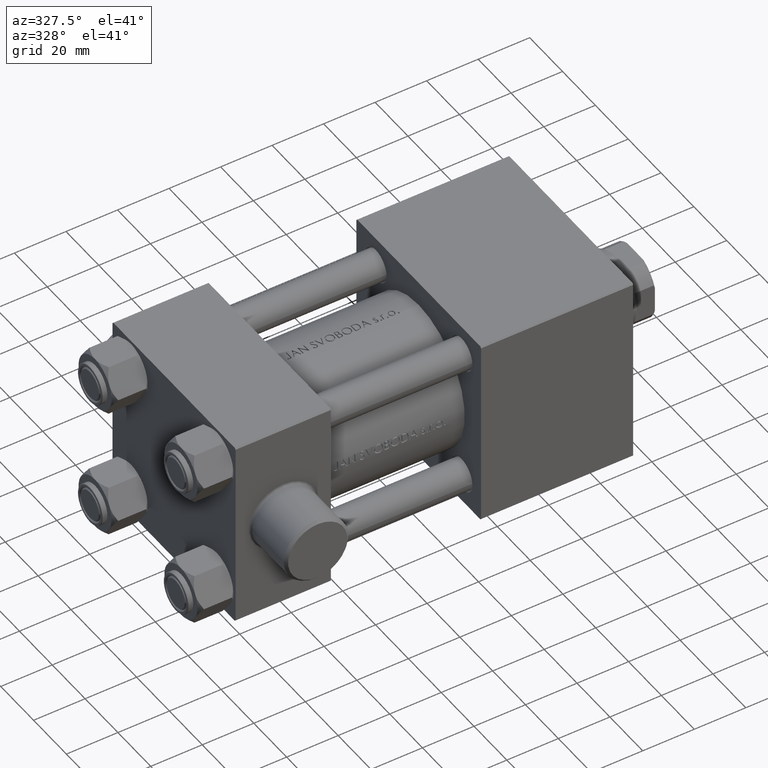
[diagram: clean part render]
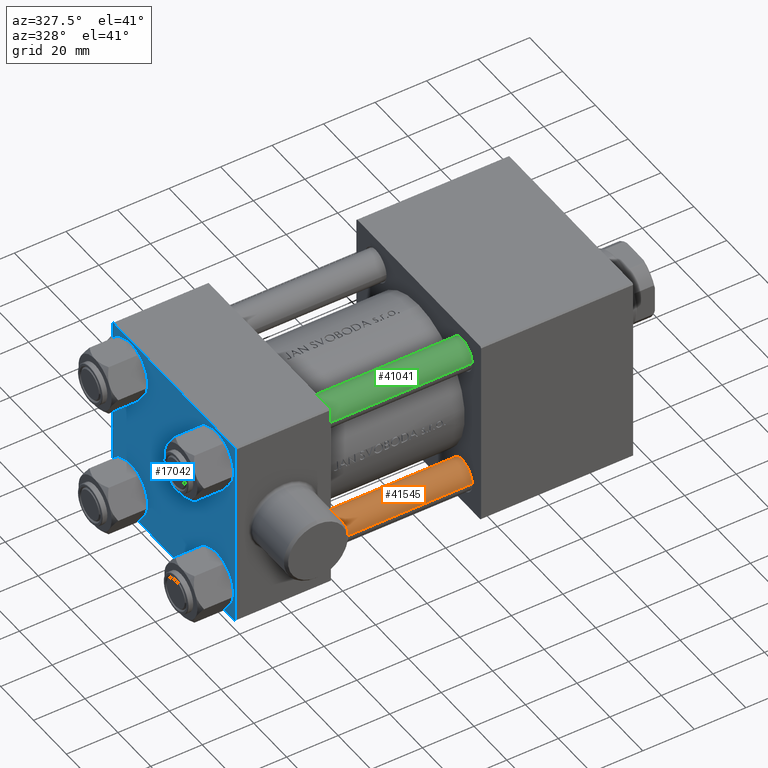
[diagram: same view with three faces highlighted in distinct colors, each labeled with its STEP entity id]
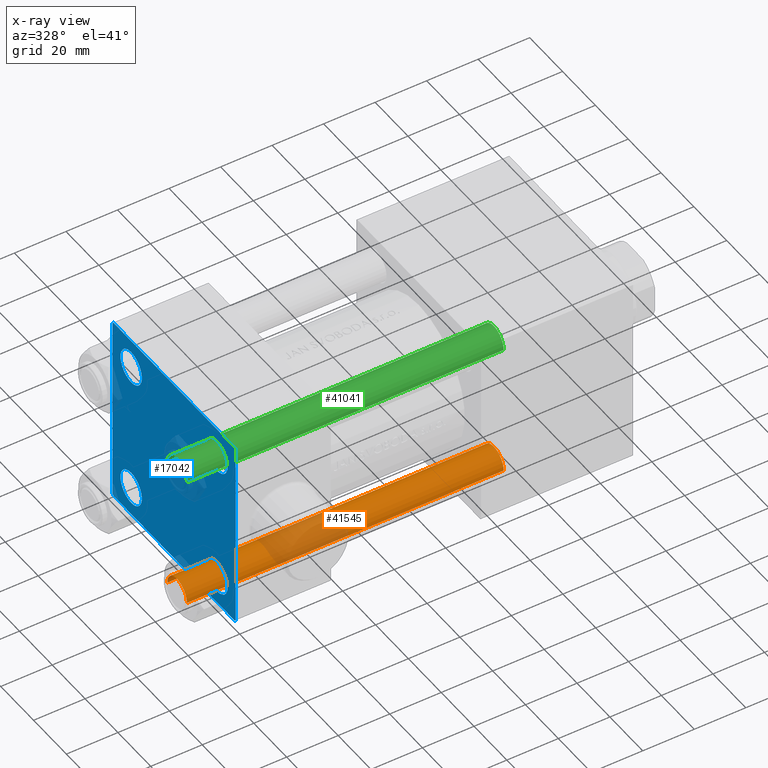
[diagram: x-ray of the same camera — body ghosted, the three highlighted faces saturated]
A machine part, auxiliary view with three faces highlighted in distinct colors.
The next image is the same camera in x-ray (body ghosted, the three faces saturated) — at least one of them is partly hidden behind the body in this view.
Their STEP definitions:

[orange] entity #41545 — the highlighted cylindrical surface (edge-blend (fillet) strip) has radius 6 mm, axis along (-1, 0, 0).
#1244 = LINE ( 'NONE', #15317, #43694 ) ;
#1715 = CARTESIAN_POINT ( 'NONE',  ( -6.000000000000000888, 0.000000000000000000, 0.4999999999999865663 ) ) ;
#1813 = CARTESIAN_POINT ( 'NONE',  ( 6.000000000000000888, 7.347880794884120722E-16, 123.5000000000000426 ) ) ;
#2340 = ORIENTED_EDGE ( 'NONE', *, *, #29836, .T. ) ;
#2950 = VERTEX_POINT ( 'NONE', #31264 ) ;
#4867 = DIRECTION ( 'NONE',  ( -1.000000000000000000, 0.000000000000000000, 0.000000000000000000 ) ) ;
#7322 = CIRCLE ( 'NONE', #33449, 6.000000000000000888 ) ;
#8536 = EDGE_CURVE ( 'NONE', #43744, #41486, #1244, .T. ) ;
#9814 = DIRECTION ( 'NONE',  ( -0.000000000000000000, -0.000000000000000000, 1.000000000000000000 ) ) ;
#11447 = CYLINDRICAL_SURFACE ( 'NONE', #32342, 6.000000000000000888 ) ;
#12482 = EDGE_CURVE ( 'NONE', #2950, #45942, #35245, .T. ) ;
#13410 = CARTESIAN_POINT ( 'NONE',  ( 0.000000000000000000, 0.000000000000000000, 123.5000000000000426 ) ) ;
#14943 = AXIS2_PLACEMENT_3D ( 'NONE', #13410, #45690, #23919 ) ;
#15317 = CARTESIAN_POINT ( 'NONE',  ( 6.000000000000000888, 7.347880794884120722E-16, 124.0000000000000000 ) ) ;
#16233 = DIRECTION ( 'NONE',  ( -0.000000000000000000, -0.000000000000000000, -1.000000000000000000 ) ) ;
#17496 = CARTESIAN_POINT ( 'NONE',  ( -6.000000000000000888, 0.000000000000000000, 124.0000000000000000 ) ) ;
#17517 = EDGE_CURVE ( 'NONE', #41486, #45942, #7322, .T. ) ;
#17952 = CIRCLE ( 'NONE', #14943, 6.000000000000000888 ) ;
#18001 = ORIENTED_EDGE ( 'NONE', *, *, #12482, .F. ) ;
#22716 = ORIENTED_EDGE ( 'NONE', *, *, #17517, .T. ) ;
#23548 = DIRECTION ( 'NONE',  ( -0.000000000000000000, -0.000000000000000000, -1.000000000000000000 ) ) ;
#23919 = DIRECTION ( 'NONE',  ( 1.000000000000000000, 0.000000000000000000, 0.000000000000000000 ) ) ;
#24094 = EDGE_LOOP ( 'NONE', ( #2340, #40093, #22716, #18001 ) ) ;
#25241 = DIRECTION ( 'NONE',  ( 1.000000000000000000, 0.000000000000000000, 0.000000000000000000 ) ) ;
#25711 = CARTESIAN_POINT ( 'NONE',  ( 6.000000000000000888, 7.347880794884120722E-16, 0.4999999999999865663 ) ) ;
#29836 = EDGE_CURVE ( 'NONE', #2950, #43744, #17952, .T. ) ;
#29909 = CARTESIAN_POINT ( 'NONE',  ( 0.000000000000000000, 0.000000000000000000, 124.0000000000000000 ) ) ;
#30314 = VECTOR ( 'NONE', #23548, 1000.000000000000000 ) ;
#31264 = CARTESIAN_POINT ( 'NONE',  ( -6.000000000000000888, 0.000000000000000000, 123.5000000000000426 ) ) ;
#32342 = AXIS2_PLACEMENT_3D ( 'NONE', #29909, #36926, #4867 ) ;
#33449 = AXIS2_PLACEMENT_3D ( 'NONE', #34608, #9814, #25241 ) ;
#34608 = CARTESIAN_POINT ( 'NONE',  ( 0.000000000000000000, 0.000000000000000000, 0.4999999999999865663 ) ) ;
#35245 = LINE ( 'NONE', #17496, #30314 ) ;
#36926 = DIRECTION ( 'NONE',  ( -0.000000000000000000, -0.000000000000000000, -1.000000000000000000 ) ) ;
#40093 = ORIENTED_EDGE ( 'NONE', *, *, #8536, .T. ) ;
#41486 = VERTEX_POINT ( 'NONE', #25711 ) ;
#41545 = ADVANCED_FACE ( 'NONE', ( #43730 ), #11447, .T. ) ;
#43694 = VECTOR ( 'NONE', #16233, 1000.000000000000000 ) ;
#43730 = FACE_OUTER_BOUND ( 'NONE', #24094, .T. ) ;
#43744 = VERTEX_POINT ( 'NONE', #1813 ) ;
#45690 = DIRECTION ( 'NONE',  ( 0.000000000000000000, 0.000000000000000000, -1.000000000000000000 ) ) ;
#45942 = VERTEX_POINT ( 'NONE', #1715 ) ;

[blue] entity #17042 — the highlighted planar face has unit normal (-1, 0, 0).
#28 = EDGE_CURVE ( 'NONE', #23589, #42600, #4659, .T. ) ;
#189 = VECTOR ( 'NONE', #23247, 1000.000000000000114 ) ;
#336 = CARTESIAN_POINT ( 'NONE',  ( 0.000000000000000000, -26.14999999999999147, 32.65000000000003411 ) ) ;
#613 = CARTESIAN_POINT ( 'NONE',  ( 0.000000000000000000, -26.14999999999999147, -32.65000000000002700 ) ) ;
#2384 = LINE ( 'NONE', #27901, #27237 ) ;
#2500 = VERTEX_POINT ( 'NONE', #29104 ) ;
#2774 = CIRCLE ( 'NONE', #21503, 6.500000000000015987 ) ;
#2827 = DIRECTION ( 'NONE',  ( 0.000000000000000000, 0.000000000000000000, 1.000000000000000000 ) ) ;
#3500 = DIRECTION ( 'NONE',  ( 1.000000000000000000, -0.000000000000000000, 0.000000000000000000 ) ) ;
#3616 = VECTOR ( 'NONE', #9877, 1000.000000000000000 ) ;
#3921 = VECTOR ( 'NONE', #16897, 1000.000000000000000 ) ;
#4283 = DIRECTION ( 'NONE',  ( -1.000000000000000000, 0.000000000000000000, -0.000000000000000000 ) ) ;
#4637 = EDGE_CURVE ( 'NONE', #9307, #23018, #28742, .T. ) ;
#4659 = LINE ( 'NONE', #44433, #33096 ) ;
#4766 = DIRECTION ( 'NONE',  ( 1.000000000000000000, -0.000000000000000000, 0.000000000000000000 ) ) ;
#5524 = AXIS2_PLACEMENT_3D ( 'NONE', #24343, #31593, #6794 ) ;
#5641 = CARTESIAN_POINT ( 'NONE',  ( 0.000000000000000000, -26.14999999999999147, -26.15000000000000924 ) ) ;
#6619 = VERTEX_POINT ( 'NONE', #17974 ) ;
#6794 = DIRECTION ( 'NONE',  ( 0.000000000000000000, 0.000000000000000000, 1.000000000000000000 ) ) ;
#7732 = LINE ( 'NONE', #25058, #20624 ) ;
#7734 = VERTEX_POINT ( 'NONE', #336 ) ;
#7817 = EDGE_CURVE ( 'NONE', #6619, #36479, #2384, .T. ) ;
#7845 = CARTESIAN_POINT ( 'NONE',  ( 0.000000000000000000, -26.14999999999999147, -19.64999999999999503 ) ) ;
#8247 = DIRECTION ( 'NONE',  ( -0.000000000000000000, 0.000000000000000000, 1.000000000000000000 ) ) ;
#8770 = ORIENTED_EDGE ( 'NONE', *, *, #34324, .T. ) ;
#9307 = VERTEX_POINT ( 'NONE', #35269 ) ;
#9671 = CIRCLE ( 'NONE', #16397, 6.500000000000023093 ) ;
#9877 = DIRECTION ( 'NONE',  ( 0.000000000000000000, 9.251858538542971581E-17, -1.000000000000000000 ) ) ;
#10870 = CARTESIAN_POINT ( 'NONE',  ( 0.000000000000000000, 36.99999999999999289, 37.50000000000000000 ) ) ;
#11753 = DIRECTION ( 'NONE',  ( 0.000000000000000000, 0.000000000000000000, 1.000000000000000000 ) ) ;
#11802 = ORIENTED_EDGE ( 'NONE', *, *, #31872, .T. ) ;
#11977 = EDGE_CURVE ( 'NONE', #23589, #26909, #7732, .T. ) ;
#12603 = VERTEX_POINT ( 'NONE', #29605 ) ;
#13512 = ORIENTED_EDGE ( 'NONE', *, *, #25573, .T. ) ;
#13607 = CARTESIAN_POINT ( 'NONE',  ( 0.000000000000000000, 26.14999999999999858, 26.15000000000000213 ) ) ;
#14206 = CARTESIAN_POINT ( 'NONE',  ( 0.000000000000000000, -37.50000000000000000, -37.00000000000003553 ) ) ;
#14639 = DIRECTION ( 'NONE',  ( 0.000000000000000000, 0.000000000000000000, 1.000000000000000000 ) ) ;
#14802 = DIRECTION ( 'NONE',  ( 0.000000000000000000, 0.000000000000000000, -1.000000000000000000 ) ) ;
#14926 = CIRCLE ( 'NONE', #17908, 6.500000000000023093 ) ;
#15217 = CARTESIAN_POINT ( 'NONE',  ( 0.000000000000000000, 26.14999999999999858, 32.65000000000002700 ) ) ;
#15285 = CARTESIAN_POINT ( 'NONE',  ( 0.000000000000000000, -26.14999999999999147, 26.15000000000000924 ) ) ;
#15641 = CARTESIAN_POINT ( 'NONE',  ( 0.000000000000000000, 26.14999999999999858, -32.65000000000001990 ) ) ;
#16066 = EDGE_CURVE ( 'NONE', #24233, #26224, #2774, .T. ) ;
#16397 = AXIS2_PLACEMENT_3D ( 'NONE', #15285, #43806, #11753 ) ;
#16422 = DIRECTION ( 'NONE',  ( 1.000000000000000000, -0.000000000000000000, 0.000000000000000000 ) ) ;
#16493 = CIRCLE ( 'NONE', #34397, 6.500000000000015987 ) ;
#16655 = CARTESIAN_POINT ( 'NONE',  ( 0.000000000000000000, 37.49999999999999289, -37.50000000000000000 ) ) ;
#16758 = CIRCLE ( 'NONE', #5524, 6.500000000000023093 ) ;
#16872 = ORIENTED_EDGE ( 'NONE', *, *, #28, .F. ) ;
#16897 = DIRECTION ( 'NONE',  ( 0.000000000000000000, -1.000000000000000000, -9.251858538542972814E-17 ) ) ;
#17042 = ADVANCED_FACE ( 'NONE', ( #36793, #22530, #22759, #22078, #37018 ), #36571, .T. ) ;
#17306 = ORIENTED_EDGE ( 'NONE', *, *, #27863, .T. ) ;
#17908 = AXIS2_PLACEMENT_3D ( 'NONE', #13607, #16422, #2827 ) ;
#17966 = EDGE_CURVE ( 'NONE', #2500, #36479, #20887, .T. ) ;
#17974 = CARTESIAN_POINT ( 'NONE',  ( 0.000000000000000000, -37.00000000000002132, -37.50000000000000711 ) ) ;
#18068 = DIRECTION ( 'NONE',  ( 0.000000000000000000, 0.7071067811865474617, -0.7071067811865474617 ) ) ;
#18208 = EDGE_CURVE ( 'NONE', #26909, #45348, #36066, .T. ) ;
#18856 = CARTESIAN_POINT ( 'NONE',  ( 0.000000000000000000, 37.24999999999998579, -37.24999999999998579 ) ) ;
#19042 = EDGE_CURVE ( 'NONE', #23018, #9307, #35038, .T. ) ;
#19518 = CARTESIAN_POINT ( 'NONE',  ( 0.000000000000000000, -26.14999999999999147, -26.15000000000000924 ) ) ;
#19749 = CARTESIAN_POINT ( 'NONE',  ( -0.000000000000000000, -37.25000000000000000, 37.25000000000000000 ) ) ;
#19934 = DIRECTION ( 'NONE',  ( 1.000000000000000000, -0.000000000000000000, 0.000000000000000000 ) ) ;
#20018 = EDGE_CURVE ( 'NONE', #44867, #12603, #14926, .T. ) ;
#20624 = VECTOR ( 'NONE', #18068, 1000.000000000000114 ) ;
#20887 = LINE ( 'NONE', #27891, #3616 ) ;
#21185 = DIRECTION ( 'NONE',  ( 0.000000000000000000, 0.000000000000000000, 1.000000000000000000 ) ) ;
#21503 = AXIS2_PLACEMENT_3D ( 'NONE', #5641, #19934, #41447 ) ;
#21613 = VECTOR ( 'NONE', #35718, 1000.000000000000114 ) ;
#22078 = FACE_BOUND ( 'NONE', #26324, .T. ) ;
#22530 = FACE_BOUND ( 'NONE', #27815, .T. ) ;
#22679 = ORIENTED_EDGE ( 'NONE', *, *, #36737, .T. ) ;
#22759 = FACE_BOUND ( 'NONE', #34041, .T. ) ;
#23018 = VERTEX_POINT ( 'NONE', #15641 ) ;
#23247 = DIRECTION ( 'NONE',  ( -0.000000000000000000, 0.7071067811865474617, 0.7071067811865474617 ) ) ;
#23357 = ORIENTED_EDGE ( 'NONE', *, *, #4637, .T. ) ;
#23363 = DIRECTION ( 'NONE',  ( 0.000000000000000000, -1.000000000000000000, -9.251858538542971581E-17 ) ) ;
#23589 = VERTEX_POINT ( 'NONE', #10870 ) ;
#23972 = ORIENTED_EDGE ( 'NONE', *, *, #16066, .T. ) ;
#24233 = VERTEX_POINT ( 'NONE', #613 ) ;
#24343 = CARTESIAN_POINT ( 'NONE',  ( 0.000000000000000000, -26.14999999999999147, 26.15000000000000924 ) ) ;
#24489 = AXIS2_PLACEMENT_3D ( 'NONE', #36346, #4283, #8247 ) ;
#24982 = ORIENTED_EDGE ( 'NONE', *, *, #18208, .T. ) ;
#25058 = CARTESIAN_POINT ( 'NONE',  ( 0.000000000000000000, 37.24999999999999289, 37.24999999999999289 ) ) ;
#25282 = VECTOR ( 'NONE', #14802, 1000.000000000000000 ) ;
#25573 = EDGE_CURVE ( 'NONE', #7734, #44177, #9671, .T. ) ;
#26224 = VERTEX_POINT ( 'NONE', #7845 ) ;
#26324 = EDGE_LOOP ( 'NONE', ( #29573, #8770 ) ) ;
#26434 = DIRECTION ( 'NONE',  ( 1.000000000000000000, -0.000000000000000000, 0.000000000000000000 ) ) ;
#26611 = ORIENTED_EDGE ( 'NONE', *, *, #7817, .T. ) ;
#26909 = VERTEX_POINT ( 'NONE', #32773 ) ;
#27237 = VECTOR ( 'NONE', #38656, 1000.000000000000000 ) ;
#27815 = EDGE_LOOP ( 'NONE', ( #11802, #23972 ) ) ;
#27863 = EDGE_CURVE ( 'NONE', #45348, #27916, #39910, .T. ) ;
#27891 = CARTESIAN_POINT ( 'NONE',  ( 0.000000000000000000, -37.50000000000000711, 37.49999999999999289 ) ) ;
#27901 = CARTESIAN_POINT ( 'NONE',  ( 0.000000000000000000, -37.24999999999975842, -37.25000000000027001 ) ) ;
#27916 = VERTEX_POINT ( 'NONE', #40368 ) ;
#28742 = CIRCLE ( 'NONE', #43697, 6.500000000000015987 ) ;
#29104 = CARTESIAN_POINT ( 'NONE',  ( 0.000000000000000000, -37.50000000000000711, 36.99999999999999289 ) ) ;
#29246 = ORIENTED_EDGE ( 'NONE', *, *, #17966, .F. ) ;
#29573 = ORIENTED_EDGE ( 'NONE', *, *, #20018, .T. ) ;
#29605 = CARTESIAN_POINT ( 'NONE',  ( 0.000000000000000000, 26.14999999999999858, 19.64999999999998437 ) ) ;
#30028 = LINE ( 'NONE', #19749, #189 ) ;
#30607 = CARTESIAN_POINT ( 'NONE',  ( 0.000000000000000000, 37.49999999999999289, -36.99999999999998579 ) ) ;
#30871 = DIRECTION ( 'NONE',  ( 0.000000000000000000, 0.000000000000000000, 1.000000000000000000 ) ) ;
#30905 = LINE ( 'NONE', #16655, #3921 ) ;
#31211 = ORIENTED_EDGE ( 'NONE', *, *, #44730, .T. ) ;
#31593 = DIRECTION ( 'NONE',  ( 1.000000000000000000, -0.000000000000000000, 0.000000000000000000 ) ) ;
#31700 = CARTESIAN_POINT ( 'NONE',  ( 0.000000000000000000, 26.14999999999999858, -26.15000000000000213 ) ) ;
#31872 = EDGE_CURVE ( 'NONE', #26224, #24233, #16493, .T. ) ;
#32257 = CIRCLE ( 'NONE', #34471, 6.500000000000023093 ) ;
#32773 = CARTESIAN_POINT ( 'NONE',  ( 0.000000000000000000, 37.49999999999999289, 37.00000000000000000 ) ) ;
#33096 = VECTOR ( 'NONE', #23363, 1000.000000000000000 ) ;
#33677 = CARTESIAN_POINT ( 'NONE',  ( 0.000000000000000000, 26.14999999999999858, -26.15000000000000213 ) ) ;
#34041 = EDGE_LOOP ( 'NONE', ( #23357, #34337 ) ) ;
#34324 = EDGE_CURVE ( 'NONE', #12603, #44867, #32257, .T. ) ;
#34337 = ORIENTED_EDGE ( 'NONE', *, *, #19042, .T. ) ;
#34341 = ORIENTED_EDGE ( 'NONE', *, *, #37044, .T. ) ;
#34397 = AXIS2_PLACEMENT_3D ( 'NONE', #19518, #4766, #44767 ) ;
#34471 = AXIS2_PLACEMENT_3D ( 'NONE', #39058, #3500, #14639 ) ;
#35038 = CIRCLE ( 'NONE', #44710, 6.500000000000015987 ) ;
#35269 = CARTESIAN_POINT ( 'NONE',  ( 0.000000000000000000, 26.14999999999999858, -19.64999999999998792 ) ) ;
#35718 = DIRECTION ( 'NONE',  ( -0.000000000000000000, -0.7071067811865474617, -0.7071067811865474617 ) ) ;
#36066 = LINE ( 'NONE', #39795, #25282 ) ;
#36346 = CARTESIAN_POINT ( 'NONE',  ( 0.000000000000000000, 0.000000000000000000, 0.000000000000000000 ) ) ;
#36479 = VERTEX_POINT ( 'NONE', #14206 ) ;
#36571 = PLANE ( 'NONE',  #24489 ) ;
#36737 = EDGE_CURVE ( 'NONE', #2500, #42600, #30028, .T. ) ;
#36793 = FACE_BOUND ( 'NONE', #43909, .T. ) ;
#37018 = FACE_OUTER_BOUND ( 'NONE', #38312, .T. ) ;
#37044 = EDGE_CURVE ( 'NONE', #27916, #6619, #30905, .T. ) ;
#37111 = ORIENTED_EDGE ( 'NONE', *, *, #11977, .T. ) ;
#37961 = CARTESIAN_POINT ( 'NONE',  ( 0.000000000000000000, -26.14999999999999147, 19.64999999999999147 ) ) ;
#38312 = EDGE_LOOP ( 'NONE', ( #24982, #17306, #34341, #26611, #29246, #22679, #16872, #37111 ) ) ;
#38656 = DIRECTION ( 'NONE',  ( 0.000000000000000000, -0.7071067811865524577, 0.7071067811865426878 ) ) ;
#39058 = CARTESIAN_POINT ( 'NONE',  ( 0.000000000000000000, 26.14999999999999858, 26.15000000000000213 ) ) ;
#39795 = CARTESIAN_POINT ( 'NONE',  ( 0.000000000000000000, 37.49999999999999289, 37.50000000000000000 ) ) ;
#39910 = LINE ( 'NONE', #18856, #21613 ) ;
#40368 = CARTESIAN_POINT ( 'NONE',  ( 0.000000000000000000, 36.99999999999997868, -37.50000000000000000 ) ) ;
#41447 = DIRECTION ( 'NONE',  ( 0.000000000000000000, 0.000000000000000000, 1.000000000000000000 ) ) ;
#42068 = CARTESIAN_POINT ( 'NONE',  ( 0.000000000000000000, -37.00000000000000711, 37.49999999999999289 ) ) ;
#42600 = VERTEX_POINT ( 'NONE', #42068 ) ;
#42704 = DIRECTION ( 'NONE',  ( 1.000000000000000000, -0.000000000000000000, 0.000000000000000000 ) ) ;
#43697 = AXIS2_PLACEMENT_3D ( 'NONE', #33677, #26434, #30871 ) ;
#43806 = DIRECTION ( 'NONE',  ( 1.000000000000000000, -0.000000000000000000, 0.000000000000000000 ) ) ;
#43909 = EDGE_LOOP ( 'NONE', ( #13512, #31211 ) ) ;
#44177 = VERTEX_POINT ( 'NONE', #37961 ) ;
#44433 = CARTESIAN_POINT ( 'NONE',  ( 0.000000000000000000, 37.49999999999999289, 37.50000000000000000 ) ) ;
#44710 = AXIS2_PLACEMENT_3D ( 'NONE', #31700, #42704, #21185 ) ;
#44730 = EDGE_CURVE ( 'NONE', #44177, #7734, #16758, .T. ) ;
#44767 = DIRECTION ( 'NONE',  ( 0.000000000000000000, 0.000000000000000000, 1.000000000000000000 ) ) ;
#44867 = VERTEX_POINT ( 'NONE', #15217 ) ;
#45348 = VERTEX_POINT ( 'NONE', #30607 ) ;

[green] entity #41041 — the highlighted cylindrical surface (edge-blend (fillet) strip) has radius 6 mm, axis along (1, -0, -0).
#374 = EDGE_CURVE ( 'NONE', #45942, #41486, #39815, .T. ) ;
#539 = DIRECTION ( 'NONE',  ( 0.000000000000000000, 0.000000000000000000, -1.000000000000000000 ) ) ;
#772 = DIRECTION ( 'NONE',  ( 1.000000000000000000, 0.000000000000000000, 0.000000000000000000 ) ) ;
#1244 = LINE ( 'NONE', #15317, #43694 ) ;
#1715 = CARTESIAN_POINT ( 'NONE',  ( -6.000000000000000888, 0.000000000000000000, 0.4999999999999865663 ) ) ;
#1813 = CARTESIAN_POINT ( 'NONE',  ( 6.000000000000000888, 7.347880794884120722E-16, 123.5000000000000426 ) ) ;
#1821 = EDGE_LOOP ( 'NONE', ( #8670, #23790, #36767, #8501 ) ) ;
#2950 = VERTEX_POINT ( 'NONE', #31264 ) ;
#3220 = AXIS2_PLACEMENT_3D ( 'NONE', #13671, #21153, #42214 ) ;
#4742 = CYLINDRICAL_SURFACE ( 'NONE', #11500, 6.000000000000000888 ) ;
#7331 = CARTESIAN_POINT ( 'NONE',  ( 0.000000000000000000, 0.000000000000000000, 123.5000000000000426 ) ) ;
#8501 = ORIENTED_EDGE ( 'NONE', *, *, #374, .T. ) ;
#8536 = EDGE_CURVE ( 'NONE', #43744, #41486, #1244, .T. ) ;
#8670 = ORIENTED_EDGE ( 'NONE', *, *, #8536, .F. ) ;
#8945 = FACE_OUTER_BOUND ( 'NONE', #1821, .T. ) ;
#11500 = AXIS2_PLACEMENT_3D ( 'NONE', #40092, #15312, #19039 ) ;
#11645 = EDGE_CURVE ( 'NONE', #43744, #2950, #43790, .T. ) ;
#12482 = EDGE_CURVE ( 'NONE', #2950, #45942, #35245, .T. ) ;
#13671 = CARTESIAN_POINT ( 'NONE',  ( 0.000000000000000000, 0.000000000000000000, 0.4999999999999865663 ) ) ;
#15312 = DIRECTION ( 'NONE',  ( -0.000000000000000000, -0.000000000000000000, -1.000000000000000000 ) ) ;
#15317 = CARTESIAN_POINT ( 'NONE',  ( 6.000000000000000888, 7.347880794884120722E-16, 124.0000000000000000 ) ) ;
#16233 = DIRECTION ( 'NONE',  ( -0.000000000000000000, -0.000000000000000000, -1.000000000000000000 ) ) ;
#17496 = CARTESIAN_POINT ( 'NONE',  ( -6.000000000000000888, 0.000000000000000000, 124.0000000000000000 ) ) ;
#19039 = DIRECTION ( 'NONE',  ( -1.000000000000000000, 0.000000000000000000, 0.000000000000000000 ) ) ;
#21153 = DIRECTION ( 'NONE',  ( -0.000000000000000000, -0.000000000000000000, 1.000000000000000000 ) ) ;
#23548 = DIRECTION ( 'NONE',  ( -0.000000000000000000, -0.000000000000000000, -1.000000000000000000 ) ) ;
#23790 = ORIENTED_EDGE ( 'NONE', *, *, #11645, .T. ) ;
#25711 = CARTESIAN_POINT ( 'NONE',  ( 6.000000000000000888, 7.347880794884120722E-16, 0.4999999999999865663 ) ) ;
#30314 = VECTOR ( 'NONE', #23548, 1000.000000000000000 ) ;
#31264 = CARTESIAN_POINT ( 'NONE',  ( -6.000000000000000888, 0.000000000000000000, 123.5000000000000426 ) ) ;
#35245 = LINE ( 'NONE', #17496, #30314 ) ;
#36320 = AXIS2_PLACEMENT_3D ( 'NONE', #7331, #539, #772 ) ;
#36767 = ORIENTED_EDGE ( 'NONE', *, *, #12482, .T. ) ;
#39815 = CIRCLE ( 'NONE', #3220, 6.000000000000000888 ) ;
#40092 = CARTESIAN_POINT ( 'NONE',  ( 0.000000000000000000, 0.000000000000000000, 124.0000000000000000 ) ) ;
#41041 = ADVANCED_FACE ( 'NONE', ( #8945 ), #4742, .T. ) ;
#41486 = VERTEX_POINT ( 'NONE', #25711 ) ;
#42214 = DIRECTION ( 'NONE',  ( 1.000000000000000000, 0.000000000000000000, 0.000000000000000000 ) ) ;
#43694 = VECTOR ( 'NONE', #16233, 1000.000000000000000 ) ;
#43744 = VERTEX_POINT ( 'NONE', #1813 ) ;
#43790 = CIRCLE ( 'NONE', #36320, 6.000000000000000888 ) ;
#45942 = VERTEX_POINT ( 'NONE', #1715 ) ;